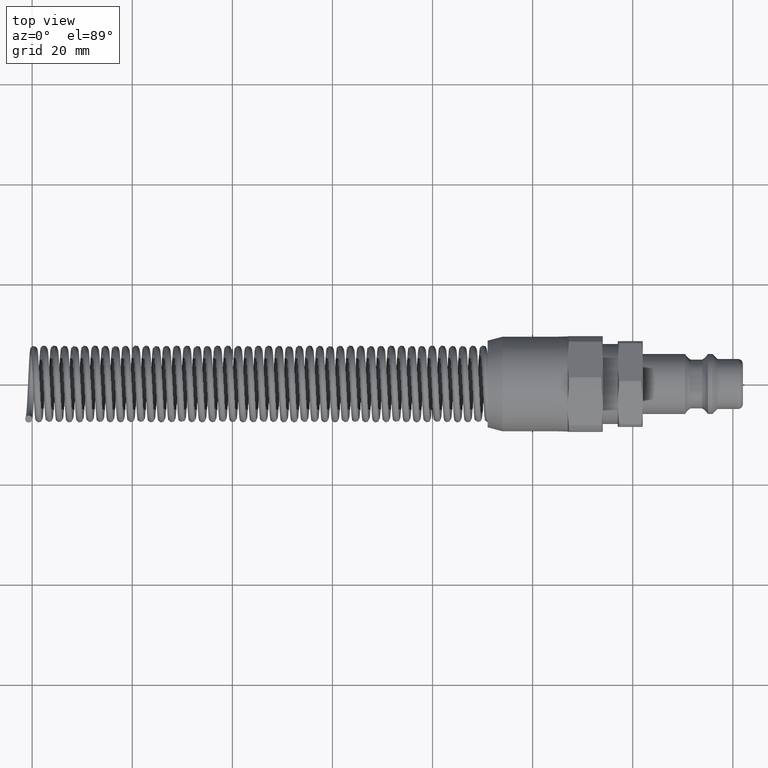
[diagram: clean part render]
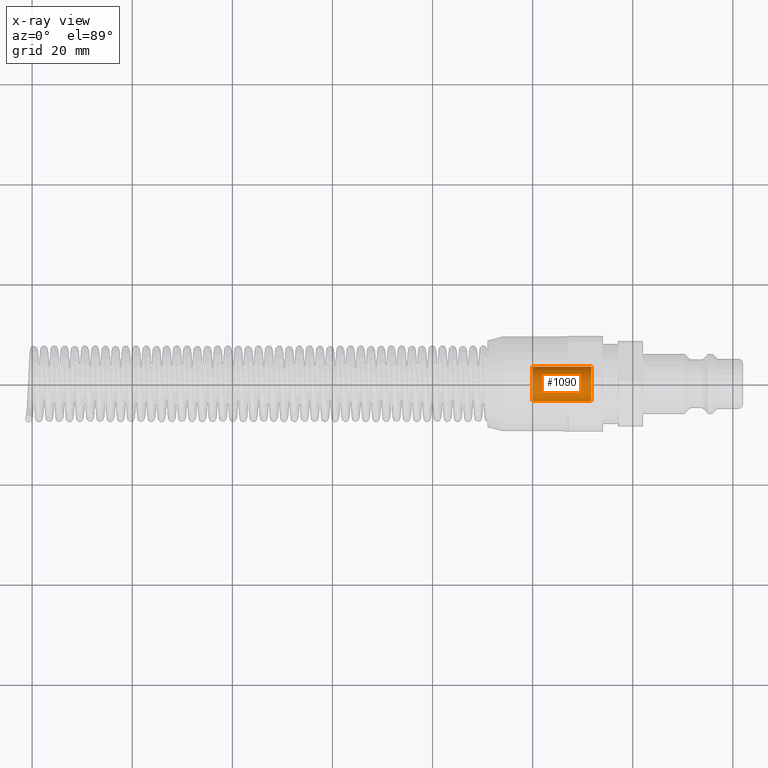
[diagram: x-ray — body ghosted, one internal face saturated and labeled with its STEP entity id]
A machine part, top view, then the same camera in x-ray: the body is ghosted and one INTERNAL B-rep face — a face not visible from any outside direction — is saturated and labeled: STEP entity #1090.
In plain terms, the highlighted cylindrical surface (bore or boss wall) has radius 3.45 mm, axis along (1, 0, 0).
Its self-contained STEP definition (entity closure, byte-faithful):
#1056=CARTESIAN_POINT('',(11.725758622134933,3.450000000000002,0.0));
#1057=VERTEX_POINT('',#1056);
#1058=CARTESIAN_POINT('',(11.725758622134933,0.0,0.0));
#1059=DIRECTION('',(1.0,0.0,0.0));
#1060=DIRECTION('',(0.0,1.0,0.0));
#1061=AXIS2_PLACEMENT_3D('',#1058,#1059,#1060);
#1062=CIRCLE('',#1061,3.450000000000002);
#1063=EDGE_CURVE('',#1057,#1057,#1062,.T.);
#1071=CARTESIAN_POINT('',(5.862879311067464,0.0,0.0));
#1072=DIRECTION('',(1.0,0.0,0.0));
#1073=DIRECTION('',(0.0,1.0,0.0));
#1074=AXIS2_PLACEMENT_3D('',#1071,#1072,#1073);
#1075=CYLINDRICAL_SURFACE('',#1074,3.450000000000001);
#1076=CARTESIAN_POINT('',(0.0,3.449999999999999,0.0));
#1077=VERTEX_POINT('',#1076);
#1078=CARTESIAN_POINT('',(0.0,0.0,0.0));
#1079=DIRECTION('',(1.0,0.0,0.0));
#1080=DIRECTION('',(0.0,1.0,0.0));
#1081=AXIS2_PLACEMENT_3D('',#1078,#1079,#1080);
#1082=CIRCLE('',#1081,3.449999999999999);
#1083=EDGE_CURVE('',#1077,#1077,#1082,.T.);
#1084=ORIENTED_EDGE('',*,*,#1083,.F.);
#1085=EDGE_LOOP('',(#1084));
#1086=FACE_OUTER_BOUND('',#1085,.T.);
#1087=ORIENTED_EDGE('',*,*,#1063,.T.);
#1088=EDGE_LOOP('',(#1087));
#1089=FACE_BOUND('',#1088,.T.);
#1090=ADVANCED_FACE('',(#1086,#1089),#1075,.F.);